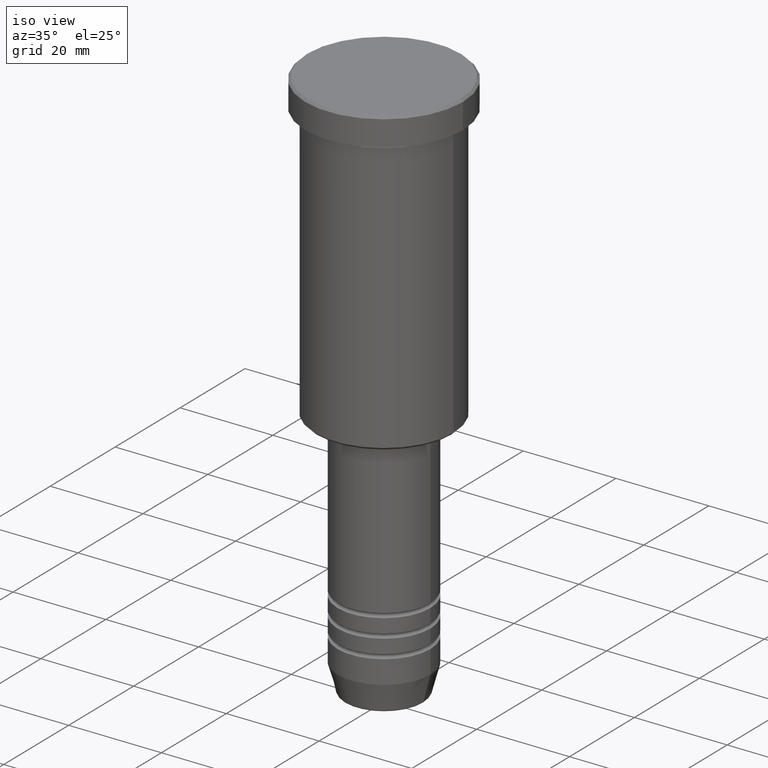
[diagram: clean part render]
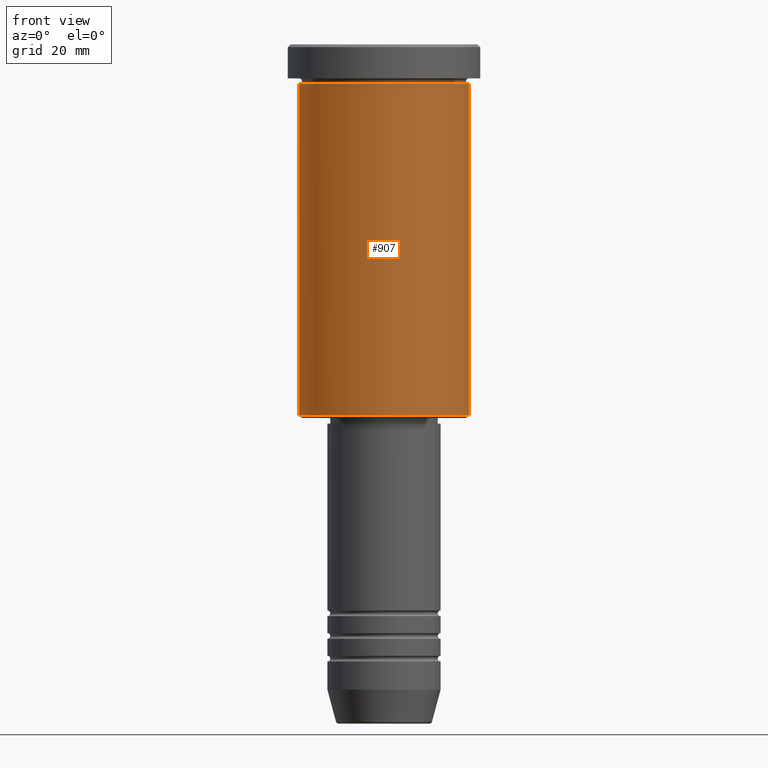
[diagram: tour spotlight — one face highlighted and labeled with its STEP entity id]
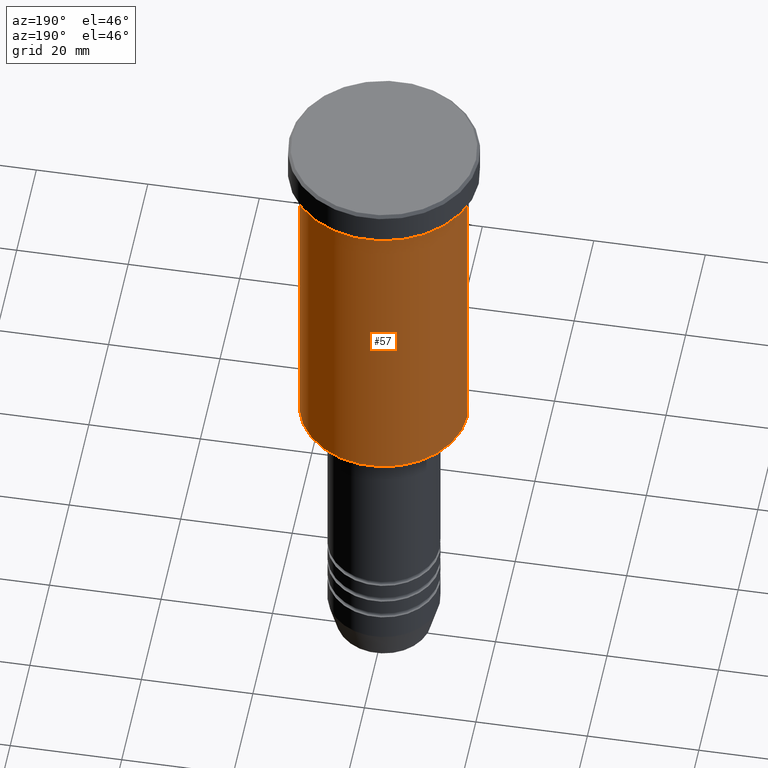
[diagram: tour spotlight — one face highlighted and labeled with its STEP entity id]
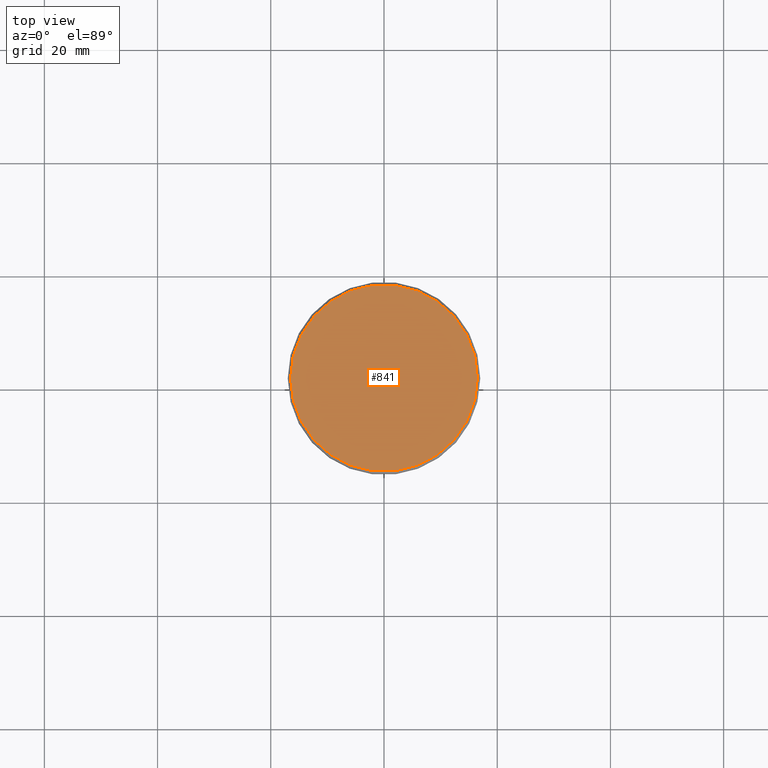
[diagram: tour spotlight — one face highlighted and labeled with its STEP entity id]
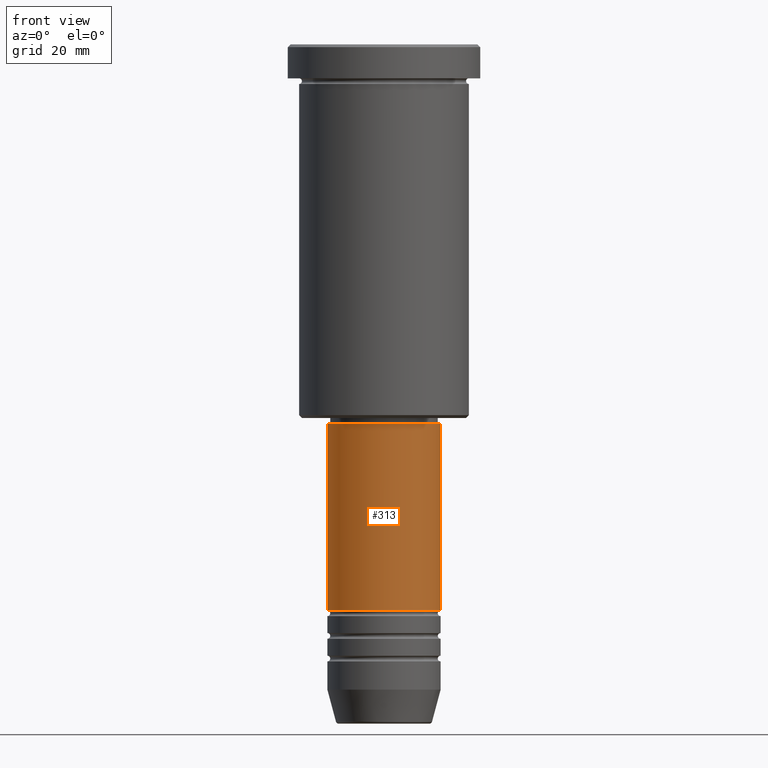
[diagram: tour spotlight — one face highlighted and labeled with its STEP entity id]
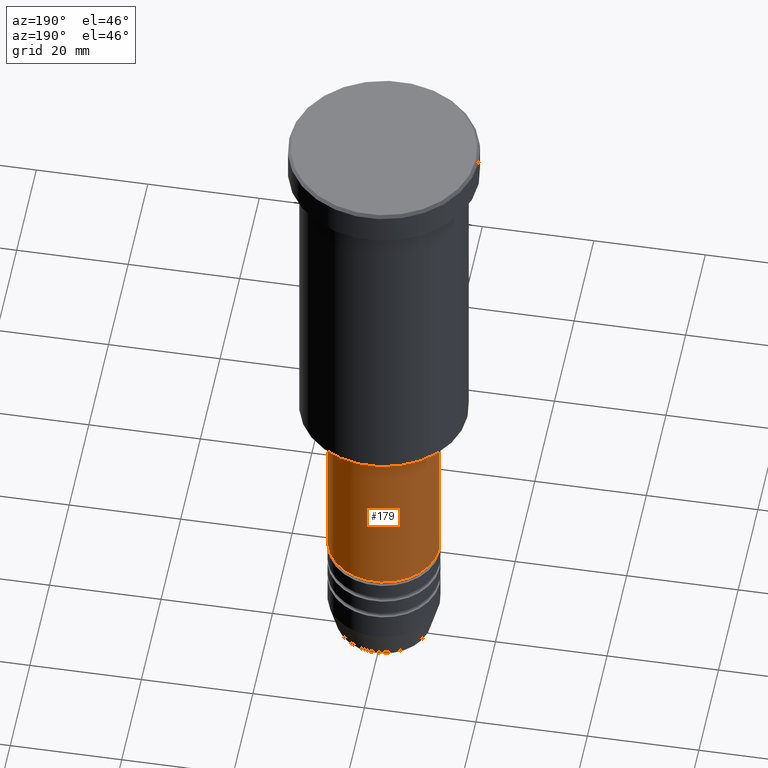
[diagram: tour spotlight — one face highlighted and labeled with its STEP entity id]
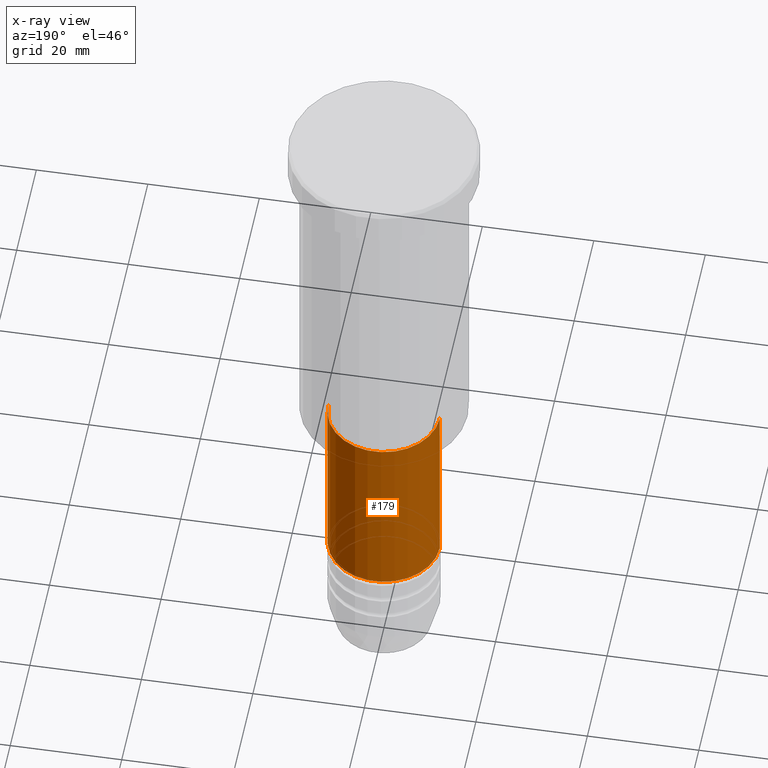
[diagram: x-ray of the same camera — body ghosted, this tour face saturated]
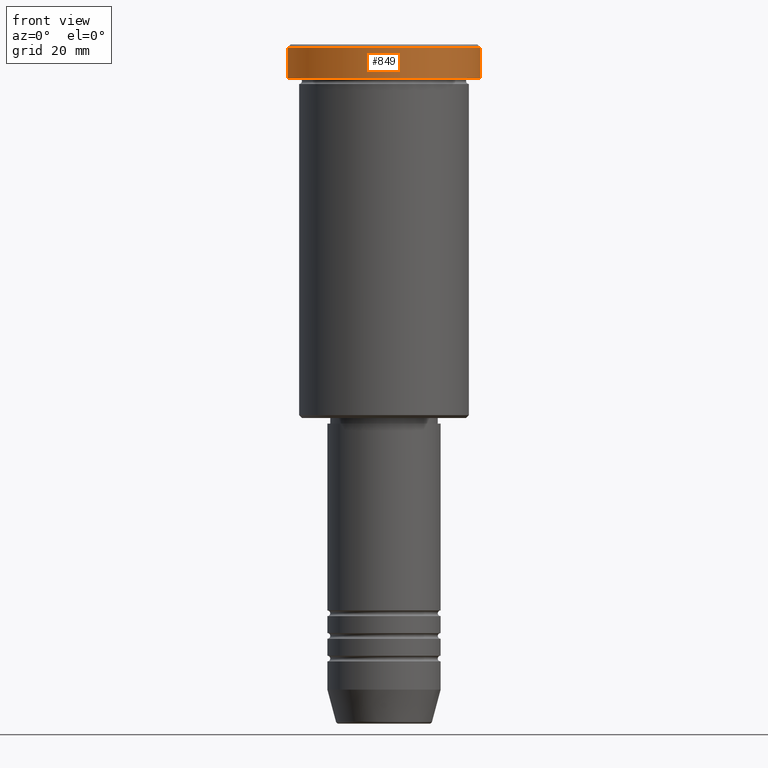
[diagram: tour spotlight — one face highlighted and labeled with its STEP entity id]
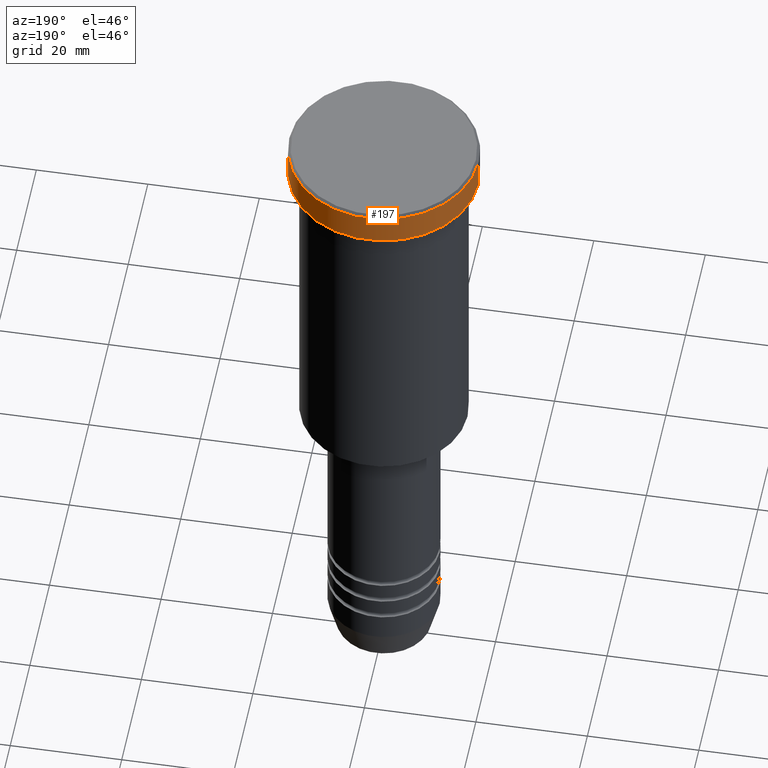
[diagram: tour spotlight — one face highlighted and labeled with its STEP entity id]
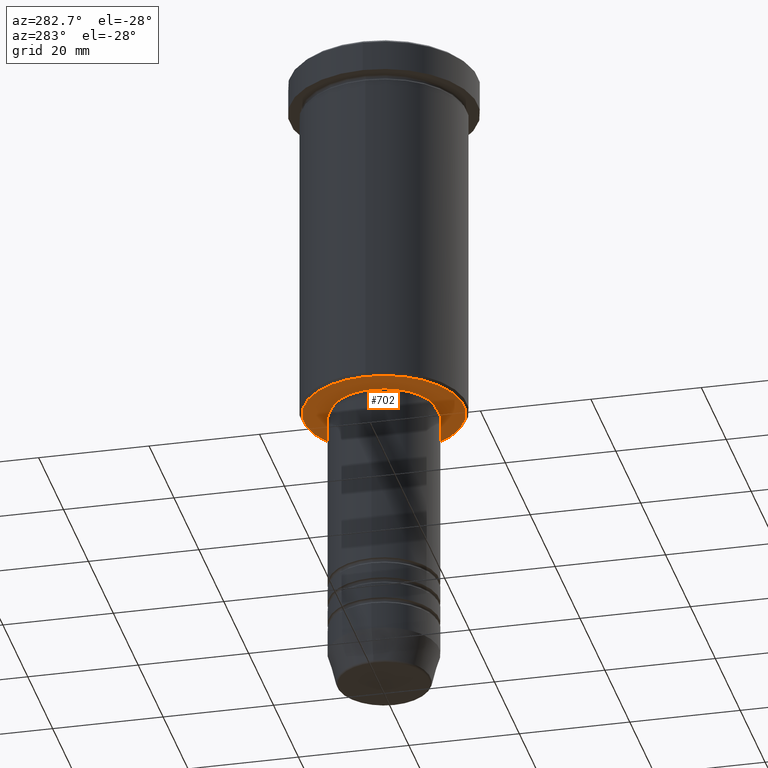
[diagram: tour spotlight — one face highlighted and labeled with its STEP entity id]
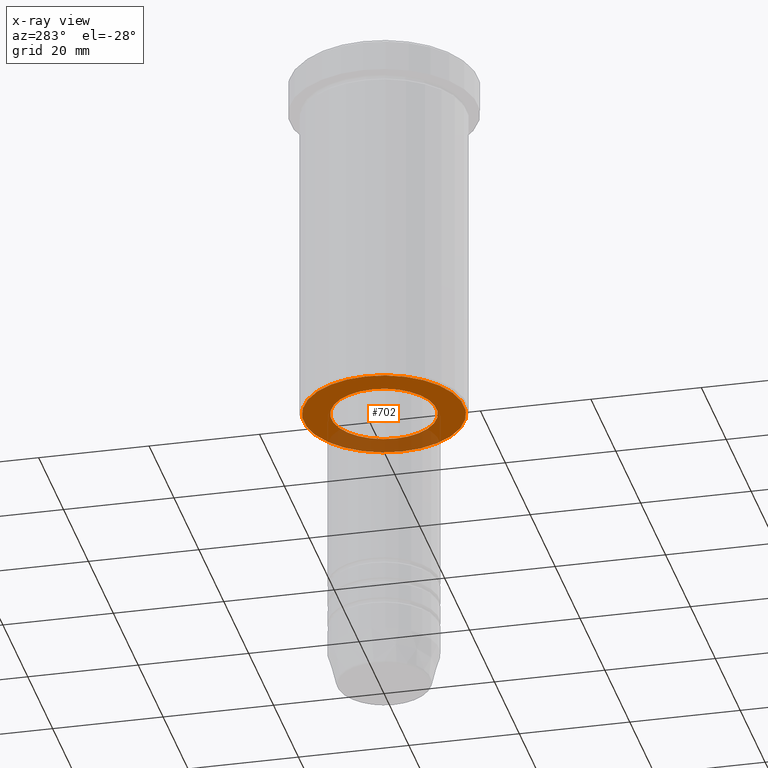
[diagram: x-ray of the same camera — body ghosted, this tour face saturated]
A machine part: a face-by-face anatomy tour. The part has 43 B-rep faces; the first image is the clean iso view, then the 8 largest visible faces are spotlighted one at a time (largest first), each with its STEP entity span.

Face 1 — front view, entity #907. In plain terms, the highlighted cylindrical surface (partial cylindrical patch) has radius 15 mm, axis along (-0, -0, 1).
Definition (entity closure, byte-faithful):
#28 = CIRCLE ( 'NONE', #1117, 15.00000000000000000 ) ;
#140 = DIRECTION ( 'NONE',  ( -0.000000000000000000, -0.000000000000000000, 1.000000000000000000 ) ) ;
#156 = LINE ( 'NONE', #317, #220 ) ;
#168 = AXIS2_PLACEMENT_3D ( 'NONE', #343, #1092, #172 ) ;
#172 = DIRECTION ( 'NONE',  ( -1.000000000000000000, 0.000000000000000000, 0.000000000000000000 ) ) ;
#188 = DIRECTION ( 'NONE',  ( -0.000000000000000000, -0.000000000000000000, 1.000000000000000000 ) ) ;
#220 = VECTOR ( 'NONE', #140, 1000.000000000000000 ) ;
#228 = CARTESIAN_POINT ( 'NONE',  ( 0.000000000000000000, 0.000000000000000000, 0.000000000000000000 ) ) ;
#234 = CYLINDRICAL_SURFACE ( 'NONE', #983, 15.00000000000000000 ) ;
#317 = CARTESIAN_POINT ( 'NONE',  ( -15.00000000000000000, 1.836970198721029589E-15, 0.000000000000000000 ) ) ;
#343 = CARTESIAN_POINT ( 'NONE',  ( 0.000000000000000000, 0.000000000000000000, -65.49999999999998579 ) ) ;
#344 = CARTESIAN_POINT ( 'NONE',  ( -15.00000000000000000, 1.836970198721029589E-15, -65.49999999999998579 ) ) ;
#358 = EDGE_CURVE ( 'NONE', #616, #438, #28, .T. ) ;
#411 = EDGE_CURVE ( 'NONE', #634, #963, #564, .T. ) ;
#438 = VERTEX_POINT ( 'NONE', #492 ) ;
#492 = CARTESIAN_POINT ( 'NONE',  ( 15.00000000000000000, 0.000000000000000000, -6.999999999999995559 ) ) ;
#543 = CARTESIAN_POINT ( 'NONE',  ( 0.000000000000000000, 0.000000000000000000, -6.999999999999995559 ) ) ;
#564 = CIRCLE ( 'NONE', #168, 15.00000000000000000 ) ;
#600 = DIRECTION ( 'NONE',  ( 1.000000000000000000, 0.000000000000000000, 0.000000000000000000 ) ) ;
#616 = VERTEX_POINT ( 'NONE', #764 ) ;
#626 = EDGE_CURVE ( 'NONE', #634, #616, #156, .T. ) ;
#634 = VERTEX_POINT ( 'NONE', #344 ) ;
#687 = FACE_OUTER_BOUND ( 'NONE', #763, .T. ) ;
#741 = EDGE_CURVE ( 'NONE', #963, #438, #964, .T. ) ;
#763 = EDGE_LOOP ( 'NONE', ( #876, #951, #887, #871 ) ) ;
#764 = CARTESIAN_POINT ( 'NONE',  ( -15.00000000000000000, 1.836970198721029589E-15, -6.999999999999995559 ) ) ;
#801 = CARTESIAN_POINT ( 'NONE',  ( 15.00000000000000000, 0.000000000000000000, 0.000000000000000000 ) ) ;
#869 = DIRECTION ( 'NONE',  ( -0.000000000000000000, -0.000000000000000000, 1.000000000000000000 ) ) ;
#871 = ORIENTED_EDGE ( 'NONE', *, *, #358, .F. ) ;
#876 = ORIENTED_EDGE ( 'NONE', *, *, #626, .F. ) ;
#887 = ORIENTED_EDGE ( 'NONE', *, *, #741, .T. ) ;
#900 = DIRECTION ( 'NONE',  ( 1.000000000000000000, 0.000000000000000000, 0.000000000000000000 ) ) ;
#907 = ADVANCED_FACE ( 'NONE', ( #687 ), #234, .T. ) ;
#942 = VECTOR ( 'NONE', #1172, 1000.000000000000000 ) ;
#949 = CARTESIAN_POINT ( 'NONE',  ( 15.00000000000000000, 0.000000000000000000, -65.49999999999998579 ) ) ;
#951 = ORIENTED_EDGE ( 'NONE', *, *, #411, .T. ) ;
#963 = VERTEX_POINT ( 'NONE', #949 ) ;
#964 = LINE ( 'NONE', #801, #942 ) ;
#983 = AXIS2_PLACEMENT_3D ( 'NONE', #228, #869, #600 ) ;
#1092 = DIRECTION ( 'NONE',  ( -0.000000000000000000, -0.000000000000000000, 1.000000000000000000 ) ) ;
#1117 = AXIS2_PLACEMENT_3D ( 'NONE', #543, #188, #900 ) ;
#1172 = DIRECTION ( 'NONE',  ( -0.000000000000000000, -0.000000000000000000, 1.000000000000000000 ) ) ;

Face 2 — auxiliary view, entity #57. In plain terms, the highlighted cylindrical surface (partial cylindrical patch) has radius 15 mm, axis along (-0, -0, 1).
Definition (entity closure, byte-faithful):
#3 = EDGE_CURVE ( 'NONE', #438, #616, #123, .T. ) ;
#22 = CARTESIAN_POINT ( 'NONE',  ( 0.000000000000000000, 0.000000000000000000, -6.999999999999995559 ) ) ;
#57 = ADVANCED_FACE ( 'NONE', ( #281 ), #360, .T. ) ;
#97 = DIRECTION ( 'NONE',  ( -0.000000000000000000, -0.000000000000000000, 1.000000000000000000 ) ) ;
#123 = CIRCLE ( 'NONE', #1116, 15.00000000000000000 ) ;
#140 = DIRECTION ( 'NONE',  ( -0.000000000000000000, -0.000000000000000000, 1.000000000000000000 ) ) ;
#142 = AXIS2_PLACEMENT_3D ( 'NONE', #1091, #97, #820 ) ;
#148 = DIRECTION ( 'NONE',  ( -1.000000000000000000, 0.000000000000000000, 0.000000000000000000 ) ) ;
#156 = LINE ( 'NONE', #317, #220 ) ;
#194 = DIRECTION ( 'NONE',  ( 1.000000000000000000, 0.000000000000000000, 0.000000000000000000 ) ) ;
#220 = VECTOR ( 'NONE', #140, 1000.000000000000000 ) ;
#254 = ORIENTED_EDGE ( 'NONE', *, *, #626, .T. ) ;
#267 = ORIENTED_EDGE ( 'NONE', *, *, #741, .F. ) ;
#281 = FACE_OUTER_BOUND ( 'NONE', #514, .T. ) ;
#317 = CARTESIAN_POINT ( 'NONE',  ( -15.00000000000000000, 1.836970198721029589E-15, 0.000000000000000000 ) ) ;
#344 = CARTESIAN_POINT ( 'NONE',  ( -15.00000000000000000, 1.836970198721029589E-15, -65.49999999999998579 ) ) ;
#360 = CYLINDRICAL_SURFACE ( 'NONE', #142, 15.00000000000000000 ) ;
#438 = VERTEX_POINT ( 'NONE', #492 ) ;
#466 = EDGE_CURVE ( 'NONE', #963, #634, #846, .T. ) ;
#484 = DIRECTION ( 'NONE',  ( -0.000000000000000000, -0.000000000000000000, 1.000000000000000000 ) ) ;
#492 = CARTESIAN_POINT ( 'NONE',  ( 15.00000000000000000, 0.000000000000000000, -6.999999999999995559 ) ) ;
#514 = EDGE_LOOP ( 'NONE', ( #1161, #254, #599, #267 ) ) ;
#599 = ORIENTED_EDGE ( 'NONE', *, *, #3, .F. ) ;
#616 = VERTEX_POINT ( 'NONE', #764 ) ;
#626 = EDGE_CURVE ( 'NONE', #634, #616, #156, .T. ) ;
#634 = VERTEX_POINT ( 'NONE', #344 ) ;
#741 = EDGE_CURVE ( 'NONE', #963, #438, #964, .T. ) ;
#764 = CARTESIAN_POINT ( 'NONE',  ( -15.00000000000000000, 1.836970198721029589E-15, -6.999999999999995559 ) ) ;
#801 = CARTESIAN_POINT ( 'NONE',  ( 15.00000000000000000, 0.000000000000000000, 0.000000000000000000 ) ) ;
#820 = DIRECTION ( 'NONE',  ( 1.000000000000000000, 0.000000000000000000, 0.000000000000000000 ) ) ;
#846 = CIRCLE ( 'NONE', #1098, 15.00000000000000000 ) ;
#942 = VECTOR ( 'NONE', #1172, 1000.000000000000000 ) ;
#949 = CARTESIAN_POINT ( 'NONE',  ( 15.00000000000000000, 0.000000000000000000, -65.49999999999998579 ) ) ;
#962 = DIRECTION ( 'NONE',  ( -0.000000000000000000, -0.000000000000000000, 1.000000000000000000 ) ) ;
#963 = VERTEX_POINT ( 'NONE', #949 ) ;
#964 = LINE ( 'NONE', #801, #942 ) ;
#1052 = CARTESIAN_POINT ( 'NONE',  ( 0.000000000000000000, 0.000000000000000000, -65.49999999999998579 ) ) ;
#1091 = CARTESIAN_POINT ( 'NONE',  ( 0.000000000000000000, 0.000000000000000000, 0.000000000000000000 ) ) ;
#1098 = AXIS2_PLACEMENT_3D ( 'NONE', #1052, #962, #148 ) ;
#1116 = AXIS2_PLACEMENT_3D ( 'NONE', #22, #484, #194 ) ;
#1161 = ORIENTED_EDGE ( 'NONE', *, *, #466, .T. ) ;
#1172 = DIRECTION ( 'NONE',  ( -0.000000000000000000, -0.000000000000000000, 1.000000000000000000 ) ) ;

Face 3 — top view, entity #841. In plain terms, the highlighted planar face has unit normal (0, -0, 1).
Definition (entity closure, byte-faithful):
#70 = ORIENTED_EDGE ( 'NONE', *, *, #336, .T. ) ;
#82 = CARTESIAN_POINT ( 'NONE',  ( -16.50000000000001421, 0.000000000000000000, 0.000000000000000000 ) ) ;
#83 = FACE_OUTER_BOUND ( 'NONE', #115, .T. ) ;
#115 = EDGE_LOOP ( 'NONE', ( #70, #409 ) ) ;
#117 = DIRECTION ( 'NONE',  ( 1.000000000000000000, 0.000000000000000000, 0.000000000000000000 ) ) ;
#185 = CARTESIAN_POINT ( 'NONE',  ( 16.50000000000001421, 2.051283388571817281E-15, 0.000000000000000000 ) ) ;
#209 = CARTESIAN_POINT ( 'NONE',  ( 0.000000000000000000, 0.000000000000000000, 0.000000000000000000 ) ) ;
#316 = DIRECTION ( 'NONE',  ( 1.000000000000000000, 0.000000000000000000, 0.000000000000000000 ) ) ;
#336 = EDGE_CURVE ( 'NONE', #416, #851, #1081, .T. ) ;
#362 = DIRECTION ( 'NONE',  ( 1.000000000000000000, 0.000000000000000000, 0.000000000000000000 ) ) ;
#366 = PLANE ( 'NONE',  #1119 ) ;
#409 = ORIENTED_EDGE ( 'NONE', *, *, #940, .T. ) ;
#416 = VERTEX_POINT ( 'NONE', #82 ) ;
#446 = DIRECTION ( 'NONE',  ( 0.000000000000000000, -0.000000000000000000, 1.000000000000000000 ) ) ;
#457 = CARTESIAN_POINT ( 'NONE',  ( 0.000000000000000000, 0.000000000000000000, 0.000000000000000000 ) ) ;
#501 = DIRECTION ( 'NONE',  ( -0.000000000000000000, -0.000000000000000000, 1.000000000000000000 ) ) ;
#587 = DIRECTION ( 'NONE',  ( -0.000000000000000000, -0.000000000000000000, 1.000000000000000000 ) ) ;
#674 = AXIS2_PLACEMENT_3D ( 'NONE', #946, #587, #316 ) ;
#750 = CIRCLE ( 'NONE', #1034, 16.50000000000001421 ) ;
#841 = ADVANCED_FACE ( 'NONE', ( #83 ), #366, .T. ) ;
#851 = VERTEX_POINT ( 'NONE', #185 ) ;
#940 = EDGE_CURVE ( 'NONE', #851, #416, #750, .T. ) ;
#946 = CARTESIAN_POINT ( 'NONE',  ( 0.000000000000000000, 0.000000000000000000, 0.000000000000000000 ) ) ;
#1034 = AXIS2_PLACEMENT_3D ( 'NONE', #209, #501, #117 ) ;
#1081 = CIRCLE ( 'NONE', #674, 16.50000000000001421 ) ;
#1119 = AXIS2_PLACEMENT_3D ( 'NONE', #457, #446, #362 ) ;

Face 4 — front view, entity #313. In plain terms, the highlighted cylindrical surface (partial cylindrical patch) has radius 10 mm, axis along (-0, -0, 1).
Definition (entity closure, byte-faithful):
#9 = AXIS2_PLACEMENT_3D ( 'NONE', #204, #828, #102 ) ;
#15 = FACE_OUTER_BOUND ( 'NONE', #283, .T. ) ;
#19 = DIRECTION ( 'NONE',  ( -0.000000000000000000, -0.000000000000000000, 1.000000000000000000 ) ) ;
#34 = DIRECTION ( 'NONE',  ( -0.000000000000000000, -0.000000000000000000, 1.000000000000000000 ) ) ;
#53 = CARTESIAN_POINT ( 'NONE',  ( 10.00000000000000000, 0.000000000000000000, 0.000000000000000000 ) ) ;
#102 = DIRECTION ( 'NONE',  ( 1.000000000000000000, 0.000000000000000000, 0.000000000000000000 ) ) ;
#111 = CARTESIAN_POINT ( 'NONE',  ( -9.999999999999998224, 1.224646799147353256E-15, -67.00000000000002842 ) ) ;
#190 = CARTESIAN_POINT ( 'NONE',  ( 0.000000000000000000, 0.000000000000000000, -67.00000000000002842 ) ) ;
#193 = DIRECTION ( 'NONE',  ( 1.000000000000000000, 0.000000000000000000, 0.000000000000000000 ) ) ;
#204 = CARTESIAN_POINT ( 'NONE',  ( 0.000000000000000000, 0.000000000000000000, 0.000000000000000000 ) ) ;
#210 = CARTESIAN_POINT ( 'NONE',  ( 0.000000000000000000, 0.000000000000000000, -99.99999999999997158 ) ) ;
#255 = EDGE_CURVE ( 'NONE', #908, #531, #717, .T. ) ;
#283 = EDGE_LOOP ( 'NONE', ( #840, #321, #522, #774 ) ) ;
#313 = ADVANCED_FACE ( 'NONE', ( #15 ), #379, .T. ) ;
#321 = ORIENTED_EDGE ( 'NONE', *, *, #491, .T. ) ;
#379 = CYLINDRICAL_SURFACE ( 'NONE', #9, 10.00000000000000000 ) ;
#388 = VECTOR ( 'NONE', #19, 1000.000000000000000 ) ;
#432 = VERTEX_POINT ( 'NONE', #1074 ) ;
#490 = CARTESIAN_POINT ( 'NONE',  ( 9.999999999999998224, 0.000000000000000000, -67.00000000000002842 ) ) ;
#491 = EDGE_CURVE ( 'NONE', #684, #432, #530, .T. ) ;
#522 = ORIENTED_EDGE ( 'NONE', *, *, #1009, .T. ) ;
#528 = VECTOR ( 'NONE', #595, 1000.000000000000000 ) ;
#530 = CIRCLE ( 'NONE', #982, 10.00000000000000178 ) ;
#531 = VERTEX_POINT ( 'NONE', #490 ) ;
#573 = LINE ( 'NONE', #1111, #528 ) ;
#595 = DIRECTION ( 'NONE',  ( -0.000000000000000000, -0.000000000000000000, 1.000000000000000000 ) ) ;
#678 = DIRECTION ( 'NONE',  ( 1.000000000000000000, 0.000000000000000000, 0.000000000000000000 ) ) ;
#684 = VERTEX_POINT ( 'NONE', #889 ) ;
#717 = CIRCLE ( 'NONE', #1035, 9.999999999999998224 ) ;
#774 = ORIENTED_EDGE ( 'NONE', *, *, #255, .F. ) ;
#828 = DIRECTION ( 'NONE',  ( -0.000000000000000000, -0.000000000000000000, 1.000000000000000000 ) ) ;
#840 = ORIENTED_EDGE ( 'NONE', *, *, #957, .F. ) ;
#882 = DIRECTION ( 'NONE',  ( -0.000000000000000000, -0.000000000000000000, 1.000000000000000000 ) ) ;
#889 = CARTESIAN_POINT ( 'NONE',  ( -10.00000000000000178, 1.224646799147353454E-15, -99.99999999999997158 ) ) ;
#908 = VERTEX_POINT ( 'NONE', #111 ) ;
#957 = EDGE_CURVE ( 'NONE', #684, #908, #573, .T. ) ;
#982 = AXIS2_PLACEMENT_3D ( 'NONE', #210, #34, #678 ) ;
#1009 = EDGE_CURVE ( 'NONE', #432, #531, #1016, .T. ) ;
#1016 = LINE ( 'NONE', #53, #388 ) ;
#1035 = AXIS2_PLACEMENT_3D ( 'NONE', #190, #882, #193 ) ;
#1074 = CARTESIAN_POINT ( 'NONE',  ( 10.00000000000000178, 0.000000000000000000, -99.99999999999997158 ) ) ;
#1111 = CARTESIAN_POINT ( 'NONE',  ( -10.00000000000000000, 1.224646799147353256E-15, 0.000000000000000000 ) ) ;

Face 5 — auxiliary view, entity #179. An x-ray twin of the same camera follows (body ghosted, this face saturated) — the face is partly hidden behind the body. In plain terms, the highlighted cylindrical surface (partial cylindrical patch) has radius 10 mm, axis along (-0, -0, 1).
Definition (entity closure, byte-faithful):
#19 = DIRECTION ( 'NONE',  ( -0.000000000000000000, -0.000000000000000000, 1.000000000000000000 ) ) ;
#46 = ORIENTED_EDGE ( 'NONE', *, *, #748, .F. ) ;
#53 = CARTESIAN_POINT ( 'NONE',  ( 10.00000000000000000, 0.000000000000000000, 0.000000000000000000 ) ) ;
#59 = CARTESIAN_POINT ( 'NONE',  ( 0.000000000000000000, 0.000000000000000000, 0.000000000000000000 ) ) ;
#107 = CIRCLE ( 'NONE', #811, 9.999999999999998224 ) ;
#111 = CARTESIAN_POINT ( 'NONE',  ( -9.999999999999998224, 1.224646799147353256E-15, -67.00000000000002842 ) ) ;
#134 = EDGE_LOOP ( 'NONE', ( #943, #602, #46, #760 ) ) ;
#151 = CARTESIAN_POINT ( 'NONE',  ( 0.000000000000000000, 0.000000000000000000, -99.99999999999997158 ) ) ;
#179 = ADVANCED_FACE ( 'NONE', ( #1129 ), #787, .T. ) ;
#306 = DIRECTION ( 'NONE',  ( 1.000000000000000000, 0.000000000000000000, 0.000000000000000000 ) ) ;
#353 = CIRCLE ( 'NONE', #859, 10.00000000000000178 ) ;
#388 = VECTOR ( 'NONE', #19, 1000.000000000000000 ) ;
#432 = VERTEX_POINT ( 'NONE', #1074 ) ;
#490 = CARTESIAN_POINT ( 'NONE',  ( 9.999999999999998224, 0.000000000000000000, -67.00000000000002842 ) ) ;
#528 = VECTOR ( 'NONE', #595, 1000.000000000000000 ) ;
#531 = VERTEX_POINT ( 'NONE', #490 ) ;
#573 = LINE ( 'NONE', #1111, #528 ) ;
#595 = DIRECTION ( 'NONE',  ( -0.000000000000000000, -0.000000000000000000, 1.000000000000000000 ) ) ;
#602 = ORIENTED_EDGE ( 'NONE', *, *, #957, .T. ) ;
#632 = EDGE_CURVE ( 'NONE', #432, #684, #353, .T. ) ;
#644 = CARTESIAN_POINT ( 'NONE',  ( 0.000000000000000000, 0.000000000000000000, -67.00000000000002842 ) ) ;
#684 = VERTEX_POINT ( 'NONE', #889 ) ;
#690 = DIRECTION ( 'NONE',  ( -0.000000000000000000, -0.000000000000000000, 1.000000000000000000 ) ) ;
#740 = DIRECTION ( 'NONE',  ( 1.000000000000000000, 0.000000000000000000, 0.000000000000000000 ) ) ;
#748 = EDGE_CURVE ( 'NONE', #531, #908, #107, .T. ) ;
#760 = ORIENTED_EDGE ( 'NONE', *, *, #1009, .F. ) ;
#768 = DIRECTION ( 'NONE',  ( -0.000000000000000000, -0.000000000000000000, 1.000000000000000000 ) ) ;
#787 = CYLINDRICAL_SURFACE ( 'NONE', #1080, 10.00000000000000000 ) ;
#811 = AXIS2_PLACEMENT_3D ( 'NONE', #644, #1083, #740 ) ;
#859 = AXIS2_PLACEMENT_3D ( 'NONE', #151, #690, #985 ) ;
#889 = CARTESIAN_POINT ( 'NONE',  ( -10.00000000000000178, 1.224646799147353454E-15, -99.99999999999997158 ) ) ;
#908 = VERTEX_POINT ( 'NONE', #111 ) ;
#943 = ORIENTED_EDGE ( 'NONE', *, *, #632, .T. ) ;
#957 = EDGE_CURVE ( 'NONE', #684, #908, #573, .T. ) ;
#985 = DIRECTION ( 'NONE',  ( 1.000000000000000000, 0.000000000000000000, 0.000000000000000000 ) ) ;
#1009 = EDGE_CURVE ( 'NONE', #432, #531, #1016, .T. ) ;
#1016 = LINE ( 'NONE', #53, #388 ) ;
#1074 = CARTESIAN_POINT ( 'NONE',  ( 10.00000000000000178, 0.000000000000000000, -99.99999999999997158 ) ) ;
#1080 = AXIS2_PLACEMENT_3D ( 'NONE', #59, #768, #306 ) ;
#1083 = DIRECTION ( 'NONE',  ( -0.000000000000000000, -0.000000000000000000, 1.000000000000000000 ) ) ;
#1111 = CARTESIAN_POINT ( 'NONE',  ( -10.00000000000000000, 1.224646799147353256E-15, 0.000000000000000000 ) ) ;
#1129 = FACE_OUTER_BOUND ( 'NONE', #134, .T. ) ;

Face 6 — front view, entity #849. In plain terms, the highlighted cylindrical surface (partial cylindrical patch) has radius 17 mm, axis along (-0, -0, 1).
Definition (entity closure, byte-faithful):
#14 = CARTESIAN_POINT ( 'NONE',  ( 0.000000000000000000, 0.000000000000000000, -0.4999999999999935052 ) ) ;
#94 = EDGE_CURVE ( 'NONE', #309, #230, #812, .T. ) ;
#105 = EDGE_CURVE ( 'NONE', #967, #526, #1022, .T. ) ;
#127 = EDGE_CURVE ( 'NONE', #309, #967, #640, .T. ) ;
#152 = ORIENTED_EDGE ( 'NONE', *, *, #105, .T. ) ;
#208 = CARTESIAN_POINT ( 'NONE',  ( 17.00000000000000000, 0.000000000000000000, 0.000000000000000000 ) ) ;
#230 = VERTEX_POINT ( 'NONE', #628 ) ;
#271 = DIRECTION ( 'NONE',  ( -0.000000000000000000, -0.000000000000000000, 1.000000000000000000 ) ) ;
#302 = DIRECTION ( 'NONE',  ( -0.000000000000000000, -0.000000000000000000, 1.000000000000000000 ) ) ;
#309 = VERTEX_POINT ( 'NONE', #737 ) ;
#355 = DIRECTION ( 'NONE',  ( -0.000000000000000000, -0.000000000000000000, 1.000000000000000000 ) ) ;
#378 = DIRECTION ( 'NONE',  ( 1.000000000000000000, 0.000000000000000000, 0.000000000000000000 ) ) ;
#406 = AXIS2_PLACEMENT_3D ( 'NONE', #808, #355, #1086 ) ;
#413 = CARTESIAN_POINT ( 'NONE',  ( 17.00000000000000000, 0.000000000000000000, -0.4999999999999935052 ) ) ;
#485 = CARTESIAN_POINT ( 'NONE',  ( 17.00000000000000000, 0.000000000000000000, -5.999999999999994671 ) ) ;
#512 = DIRECTION ( 'NONE',  ( 1.000000000000000000, 0.000000000000000000, 0.000000000000000000 ) ) ;
#526 = VERTEX_POINT ( 'NONE', #413 ) ;
#628 = CARTESIAN_POINT ( 'NONE',  ( -17.00000000000000000, 2.081899558550500280E-15, -0.4999999999999935052 ) ) ;
#640 = CIRCLE ( 'NONE', #923, 17.00000000000000000 ) ;
#679 = DIRECTION ( 'NONE',  ( 0.000000000000000000, 0.000000000000000000, -1.000000000000000000 ) ) ;
#693 = DIRECTION ( 'NONE',  ( -0.000000000000000000, -0.000000000000000000, 1.000000000000000000 ) ) ;
#723 = CYLINDRICAL_SURFACE ( 'NONE', #406, 17.00000000000000000 ) ;
#737 = CARTESIAN_POINT ( 'NONE',  ( -17.00000000000000000, 2.081899558550500280E-15, -5.999999999999994671 ) ) ;
#808 = CARTESIAN_POINT ( 'NONE',  ( 0.000000000000000000, 0.000000000000000000, 0.000000000000000000 ) ) ;
#812 = LINE ( 'NONE', #1087, #939 ) ;
#849 = ADVANCED_FACE ( 'NONE', ( #1093 ), #723, .T. ) ;
#883 = CIRCLE ( 'NONE', #1154, 17.00000000000000000 ) ;
#904 = VECTOR ( 'NONE', #302, 1000.000000000000000 ) ;
#918 = EDGE_CURVE ( 'NONE', #526, #230, #883, .T. ) ;
#923 = AXIS2_PLACEMENT_3D ( 'NONE', #1143, #693, #512 ) ;
#939 = VECTOR ( 'NONE', #271, 1000.000000000000000 ) ;
#948 = EDGE_LOOP ( 'NONE', ( #1151, #1130, #152, #1115 ) ) ;
#967 = VERTEX_POINT ( 'NONE', #485 ) ;
#1022 = LINE ( 'NONE', #208, #904 ) ;
#1086 = DIRECTION ( 'NONE',  ( 1.000000000000000000, 0.000000000000000000, 0.000000000000000000 ) ) ;
#1087 = CARTESIAN_POINT ( 'NONE',  ( -17.00000000000000000, 2.081899558550500280E-15, 0.000000000000000000 ) ) ;
#1093 = FACE_OUTER_BOUND ( 'NONE', #948, .T. ) ;
#1115 = ORIENTED_EDGE ( 'NONE', *, *, #918, .T. ) ;
#1130 = ORIENTED_EDGE ( 'NONE', *, *, #127, .T. ) ;
#1143 = CARTESIAN_POINT ( 'NONE',  ( 0.000000000000000000, 0.000000000000000000, -5.999999999999994671 ) ) ;
#1151 = ORIENTED_EDGE ( 'NONE', *, *, #94, .F. ) ;
#1154 = AXIS2_PLACEMENT_3D ( 'NONE', #14, #679, #378 ) ;

Face 7 — auxiliary view, entity #197. In plain terms, the highlighted cylindrical surface (partial cylindrical patch) has radius 17 mm, axis along (-0, -0, 1).
Definition (entity closure, byte-faithful):
#24 = CIRCLE ( 'NONE', #1079, 17.00000000000000000 ) ;
#61 = ORIENTED_EDGE ( 'NONE', *, *, #105, .F. ) ;
#90 = CIRCLE ( 'NONE', #1020, 17.00000000000000000 ) ;
#94 = EDGE_CURVE ( 'NONE', #309, #230, #812, .T. ) ;
#95 = ORIENTED_EDGE ( 'NONE', *, *, #94, .T. ) ;
#105 = EDGE_CURVE ( 'NONE', #967, #526, #1022, .T. ) ;
#112 = ORIENTED_EDGE ( 'NONE', *, *, #686, .T. ) ;
#159 = DIRECTION ( 'NONE',  ( 0.000000000000000000, 0.000000000000000000, -1.000000000000000000 ) ) ;
#197 = ADVANCED_FACE ( 'NONE', ( #525 ), #680, .T. ) ;
#208 = CARTESIAN_POINT ( 'NONE',  ( 17.00000000000000000, 0.000000000000000000, 0.000000000000000000 ) ) ;
#230 = VERTEX_POINT ( 'NONE', #628 ) ;
#257 = DIRECTION ( 'NONE',  ( 1.000000000000000000, 0.000000000000000000, 0.000000000000000000 ) ) ;
#271 = DIRECTION ( 'NONE',  ( -0.000000000000000000, -0.000000000000000000, 1.000000000000000000 ) ) ;
#302 = DIRECTION ( 'NONE',  ( -0.000000000000000000, -0.000000000000000000, 1.000000000000000000 ) ) ;
#309 = VERTEX_POINT ( 'NONE', #737 ) ;
#330 = DIRECTION ( 'NONE',  ( 1.000000000000000000, 0.000000000000000000, 0.000000000000000000 ) ) ;
#408 = AXIS2_PLACEMENT_3D ( 'NONE', #1071, #732, #257 ) ;
#413 = CARTESIAN_POINT ( 'NONE',  ( 17.00000000000000000, 0.000000000000000000, -0.4999999999999935052 ) ) ;
#485 = CARTESIAN_POINT ( 'NONE',  ( 17.00000000000000000, 0.000000000000000000, -5.999999999999994671 ) ) ;
#525 = FACE_OUTER_BOUND ( 'NONE', #1131, .T. ) ;
#526 = VERTEX_POINT ( 'NONE', #413 ) ;
#544 = DIRECTION ( 'NONE',  ( 1.000000000000000000, 0.000000000000000000, 0.000000000000000000 ) ) ;
#628 = CARTESIAN_POINT ( 'NONE',  ( -17.00000000000000000, 2.081899558550500280E-15, -0.4999999999999935052 ) ) ;
#680 = CYLINDRICAL_SURFACE ( 'NONE', #408, 17.00000000000000000 ) ;
#686 = EDGE_CURVE ( 'NONE', #967, #309, #90, .T. ) ;
#732 = DIRECTION ( 'NONE',  ( -0.000000000000000000, -0.000000000000000000, 1.000000000000000000 ) ) ;
#737 = CARTESIAN_POINT ( 'NONE',  ( -17.00000000000000000, 2.081899558550500280E-15, -5.999999999999994671 ) ) ;
#784 = DIRECTION ( 'NONE',  ( -0.000000000000000000, -0.000000000000000000, 1.000000000000000000 ) ) ;
#812 = LINE ( 'NONE', #1087, #939 ) ;
#877 = CARTESIAN_POINT ( 'NONE',  ( 0.000000000000000000, 0.000000000000000000, -5.999999999999994671 ) ) ;
#904 = VECTOR ( 'NONE', #302, 1000.000000000000000 ) ;
#939 = VECTOR ( 'NONE', #271, 1000.000000000000000 ) ;
#967 = VERTEX_POINT ( 'NONE', #485 ) ;
#1020 = AXIS2_PLACEMENT_3D ( 'NONE', #877, #784, #330 ) ;
#1022 = LINE ( 'NONE', #208, #904 ) ;
#1023 = ORIENTED_EDGE ( 'NONE', *, *, #1148, .T. ) ;
#1071 = CARTESIAN_POINT ( 'NONE',  ( 0.000000000000000000, 0.000000000000000000, 0.000000000000000000 ) ) ;
#1079 = AXIS2_PLACEMENT_3D ( 'NONE', #1088, #159, #544 ) ;
#1087 = CARTESIAN_POINT ( 'NONE',  ( -17.00000000000000000, 2.081899558550500280E-15, 0.000000000000000000 ) ) ;
#1088 = CARTESIAN_POINT ( 'NONE',  ( 0.000000000000000000, 0.000000000000000000, -0.4999999999999935052 ) ) ;
#1131 = EDGE_LOOP ( 'NONE', ( #112, #95, #1023, #61 ) ) ;
#1148 = EDGE_CURVE ( 'NONE', #230, #526, #24, .T. ) ;

Face 8 — auxiliary view, entity #702. An x-ray twin of the same camera follows (body ghosted, this face saturated) — the face is partly hidden behind the body. In plain terms, the highlighted planar face has unit normal (0, 0, -1).
Definition (entity closure, byte-faithful):
#8 = AXIS2_PLACEMENT_3D ( 'NONE', #87, #545, #992 ) ;
#38 = CARTESIAN_POINT ( 'NONE',  ( 0.000000000000000000, 0.000000000000000000, -66.00000000000000000 ) ) ;
#87 = CARTESIAN_POINT ( 'NONE',  ( 0.000000000000000000, 0.000000000000000000, -66.00000000000000000 ) ) ;
#126 = CARTESIAN_POINT ( 'NONE',  ( -9.500000000000001776, 1.163414459189985682E-15, -66.00000000000000000 ) ) ;
#143 = ORIENTED_EDGE ( 'NONE', *, *, #513, .T. ) ;
#155 = EDGE_LOOP ( 'NONE', ( #246, #143 ) ) ;
#157 = EDGE_LOOP ( 'NONE', ( #730, #677 ) ) ;
#198 = AXIS2_PLACEMENT_3D ( 'NONE', #288, #836, #1149 ) ;
#218 = CIRCLE ( 'NONE', #8, 9.500000000000001776 ) ;
#222 = EDGE_CURVE ( 'NONE', #607, #850, #218, .T. ) ;
#232 = DIRECTION ( 'NONE',  ( -1.000000000000000000, 0.000000000000000000, -0.000000000000000000 ) ) ;
#246 = ORIENTED_EDGE ( 'NONE', *, *, #572, .T. ) ;
#274 = CARTESIAN_POINT ( 'NONE',  ( 9.500000000000001776, 0.000000000000000000, -66.00000000000000000 ) ) ;
#280 = AXIS2_PLACEMENT_3D ( 'NONE', #509, #430, #232 ) ;
#288 = CARTESIAN_POINT ( 'NONE',  ( 0.000000000000000000, 0.000000000000000000, -66.00000000000000000 ) ) ;
#430 = DIRECTION ( 'NONE',  ( 0.000000000000000000, 0.000000000000000000, -1.000000000000000000 ) ) ;
#507 = AXIS2_PLACEMENT_3D ( 'NONE', #654, #568, #852 ) ;
#509 = CARTESIAN_POINT ( 'NONE',  ( 0.000000000000000000, 15.00000000000000000, -66.00000000000000000 ) ) ;
#513 = EDGE_CURVE ( 'NONE', #879, #591, #790, .T. ) ;
#545 = DIRECTION ( 'NONE',  ( -0.000000000000000000, -0.000000000000000000, 1.000000000000000000 ) ) ;
#568 = DIRECTION ( 'NONE',  ( 0.000000000000000000, 0.000000000000000000, -1.000000000000000000 ) ) ;
#572 = EDGE_CURVE ( 'NONE', #591, #879, #1134, .T. ) ;
#591 = VERTEX_POINT ( 'NONE', #761 ) ;
#607 = VERTEX_POINT ( 'NONE', #126 ) ;
#654 = CARTESIAN_POINT ( 'NONE',  ( 0.000000000000000000, 0.000000000000000000, -66.00000000000000000 ) ) ;
#677 = ORIENTED_EDGE ( 'NONE', *, *, #222, .T. ) ;
#702 = ADVANCED_FACE ( 'NONE', ( #1162, #705 ), #1146, .T. ) ;
#705 = FACE_BOUND ( 'NONE', #157, .T. ) ;
#730 = ORIENTED_EDGE ( 'NONE', *, *, #1004, .T. ) ;
#749 = DIRECTION ( 'NONE',  ( -1.000000000000000000, 0.000000000000000000, 0.000000000000000000 ) ) ;
#761 = CARTESIAN_POINT ( 'NONE',  ( 14.49999999999998401, 0.000000000000000000, -66.00000000000000000 ) ) ;
#766 = AXIS2_PLACEMENT_3D ( 'NONE', #38, #1033, #749 ) ;
#790 = CIRCLE ( 'NONE', #507, 14.49999999999998401 ) ;
#836 = DIRECTION ( 'NONE',  ( -0.000000000000000000, -0.000000000000000000, 1.000000000000000000 ) ) ;
#844 = CIRCLE ( 'NONE', #198, 9.500000000000001776 ) ;
#850 = VERTEX_POINT ( 'NONE', #274 ) ;
#852 = DIRECTION ( 'NONE',  ( -1.000000000000000000, 0.000000000000000000, 0.000000000000000000 ) ) ;
#879 = VERTEX_POINT ( 'NONE', #1142 ) ;
#992 = DIRECTION ( 'NONE',  ( 1.000000000000000000, 0.000000000000000000, 0.000000000000000000 ) ) ;
#1004 = EDGE_CURVE ( 'NONE', #850, #607, #844, .T. ) ;
#1033 = DIRECTION ( 'NONE',  ( 0.000000000000000000, 0.000000000000000000, -1.000000000000000000 ) ) ;
#1134 = CIRCLE ( 'NONE', #766, 14.49999999999998401 ) ;
#1142 = CARTESIAN_POINT ( 'NONE',  ( -14.49999999999998401, 1.806354028742345013E-15, -66.00000000000000000 ) ) ;
#1146 = PLANE ( 'NONE',  #280 ) ;
#1149 = DIRECTION ( 'NONE',  ( 1.000000000000000000, 0.000000000000000000, 0.000000000000000000 ) ) ;
#1162 = FACE_OUTER_BOUND ( 'NONE', #155, .T. ) ;